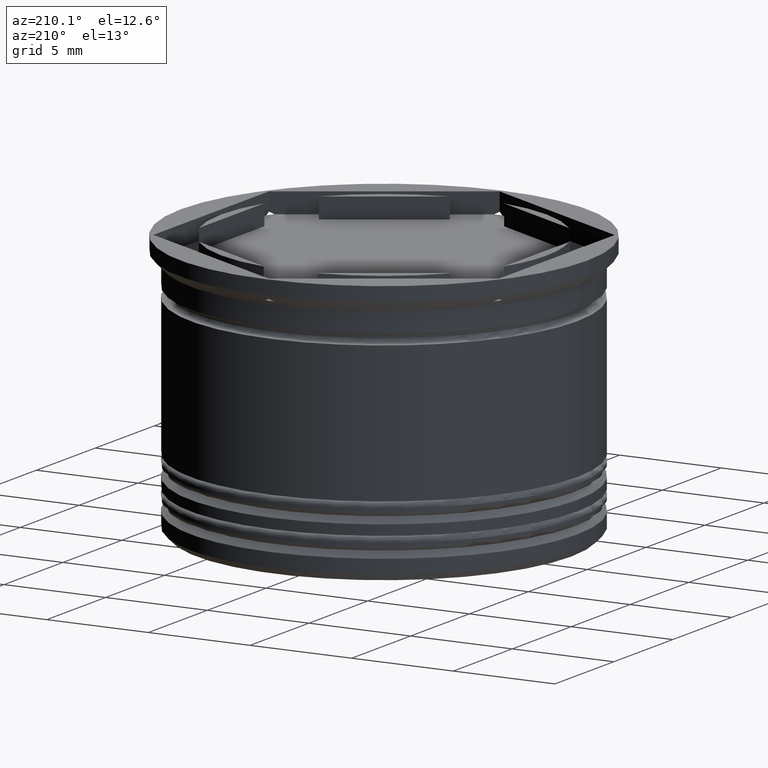
[diagram: clean part render]
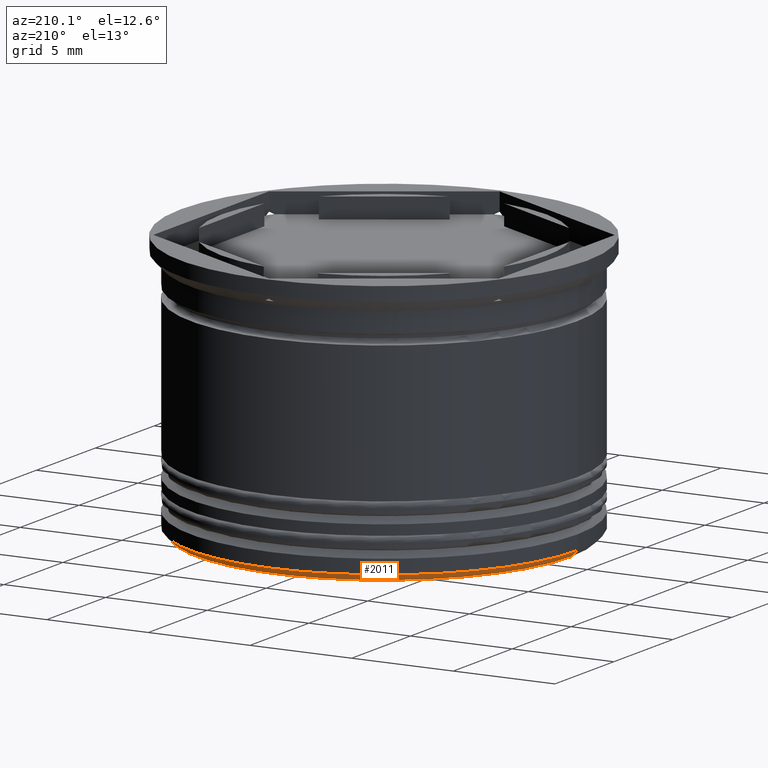
[diagram: same view with one face highlighted and labeled with its STEP entity id]
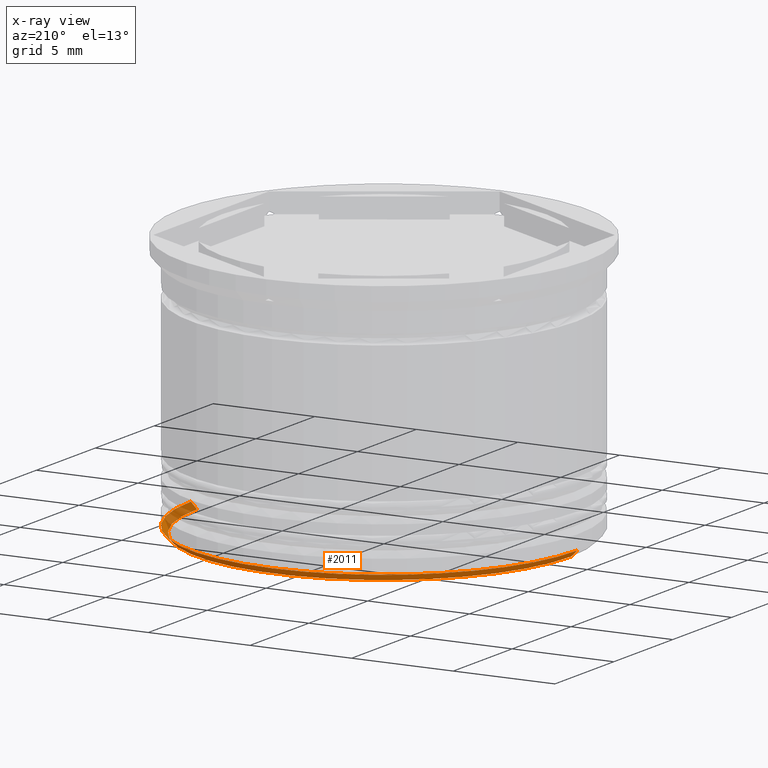
[diagram: x-ray of the same camera — body ghosted, the highlighted face saturated]
A machine part, auxiliary view. The second image highlights one B-rep face of the part: STEP entity #2011.
The next image is the same camera in x-ray: the body ghosted, the highlighted face saturated — about 14% of this face is hidden behind the body in this view.
In plain terms, the highlighted conical surface has half-angle 45 deg.
Its self-contained STEP definition (entity closure, byte-faithful):
#36 = DIRECTION ( 'NONE',  ( -1.000000000000000000, 0.000000000000000000, 0.000000000000000000 ) ) ;
#220 = AXIS2_PLACEMENT_3D ( 'NONE', #1524, #363, #36 ) ;
#253 = CONICAL_SURFACE ( 'NONE', #1928, 9.500000000000001776, 0.7853981633974482790 ) ;
#262 = DIRECTION ( 'NONE',  ( -0.000000000000000000, -0.000000000000000000, 1.000000000000000000 ) ) ;
#287 = VERTEX_POINT ( 'NONE', #554 ) ;
#363 = DIRECTION ( 'NONE',  ( -0.000000000000000000, -0.000000000000000000, 1.000000000000000000 ) ) ;
#551 = EDGE_LOOP ( 'NONE', ( #725, #1138, #1624, #1882 ) ) ;
#554 = CARTESIAN_POINT ( 'NONE',  ( -9.200000000000006395, 1.145044757202775844E-15, -13.00000000000000178 ) ) ;
#578 = CARTESIAN_POINT ( 'NONE',  ( 9.500000000000001776, 0.000000000000000000, -12.70000000000000639 ) ) ;
#641 = DIRECTION ( 'NONE',  ( -0.7071067811865474617, 8.659560562354932858E-17, 0.7071067811865474617 ) ) ;
#646 = VERTEX_POINT ( 'NONE', #750 ) ;
#725 = ORIENTED_EDGE ( 'NONE', *, *, #1134, .F. ) ;
#750 = CARTESIAN_POINT ( 'NONE',  ( 9.200000000000006395, 0.000000000000000000, -13.00000000000000178 ) ) ;
#855 = CARTESIAN_POINT ( 'NONE',  ( 0.000000000000000000, 0.000000000000000000, -13.00000000000000178 ) ) ;
#985 = LINE ( 'NONE', #1470, #1169 ) ;
#1098 = LINE ( 'NONE', #578, #1921 ) ;
#1134 = EDGE_CURVE ( 'NONE', #287, #646, #1472, .T. ) ;
#1138 = ORIENTED_EDGE ( 'NONE', *, *, #2082, .T. ) ;
#1155 = CARTESIAN_POINT ( 'NONE',  ( -9.500000000000001776, 1.163414459189985682E-15, -12.70000000000000639 ) ) ;
#1169 = VECTOR ( 'NONE', #641, 1000.000000000000114 ) ;
#1199 = AXIS2_PLACEMENT_3D ( 'NONE', #855, #2156, #2007 ) ;
#1217 = VERTEX_POINT ( 'NONE', #1590 ) ;
#1254 = EDGE_CURVE ( 'NONE', #646, #1217, #1098, .T. ) ;
#1302 = VERTEX_POINT ( 'NONE', #1155 ) ;
#1317 = FACE_OUTER_BOUND ( 'NONE', #551, .T. ) ;
#1470 = CARTESIAN_POINT ( 'NONE',  ( -9.500000000000001776, 1.163414459189985682E-15, -12.70000000000000639 ) ) ;
#1472 = CIRCLE ( 'NONE', #1199, 9.200000000000006395 ) ;
#1501 = EDGE_CURVE ( 'NONE', #1217, #1302, #1852, .T. ) ;
#1524 = CARTESIAN_POINT ( 'NONE',  ( 0.000000000000000000, 0.000000000000000000, -12.70000000000000639 ) ) ;
#1590 = CARTESIAN_POINT ( 'NONE',  ( 9.500000000000001776, 0.000000000000000000, -12.70000000000000639 ) ) ;
#1624 = ORIENTED_EDGE ( 'NONE', *, *, #1501, .F. ) ;
#1761 = DIRECTION ( 'NONE',  ( 1.000000000000000000, 0.000000000000000000, 0.000000000000000000 ) ) ;
#1792 = DIRECTION ( 'NONE',  ( 0.7071067811865474617, 0.000000000000000000, 0.7071067811865474617 ) ) ;
#1852 = CIRCLE ( 'NONE', #220, 9.500000000000001776 ) ;
#1882 = ORIENTED_EDGE ( 'NONE', *, *, #1254, .F. ) ;
#1921 = VECTOR ( 'NONE', #1792, 1000.000000000000114 ) ;
#1928 = AXIS2_PLACEMENT_3D ( 'NONE', #1976, #262, #1761 ) ;
#1976 = CARTESIAN_POINT ( 'NONE',  ( 0.000000000000000000, 0.000000000000000000, -12.70000000000000639 ) ) ;
#2007 = DIRECTION ( 'NONE',  ( -1.000000000000000000, 0.000000000000000000, 0.000000000000000000 ) ) ;
#2011 = ADVANCED_FACE ( 'NONE', ( #1317 ), #253, .T. ) ;
#2082 = EDGE_CURVE ( 'NONE', #287, #1302, #985, .T. ) ;
#2156 = DIRECTION ( 'NONE',  ( 0.000000000000000000, 0.000000000000000000, -1.000000000000000000 ) ) ;